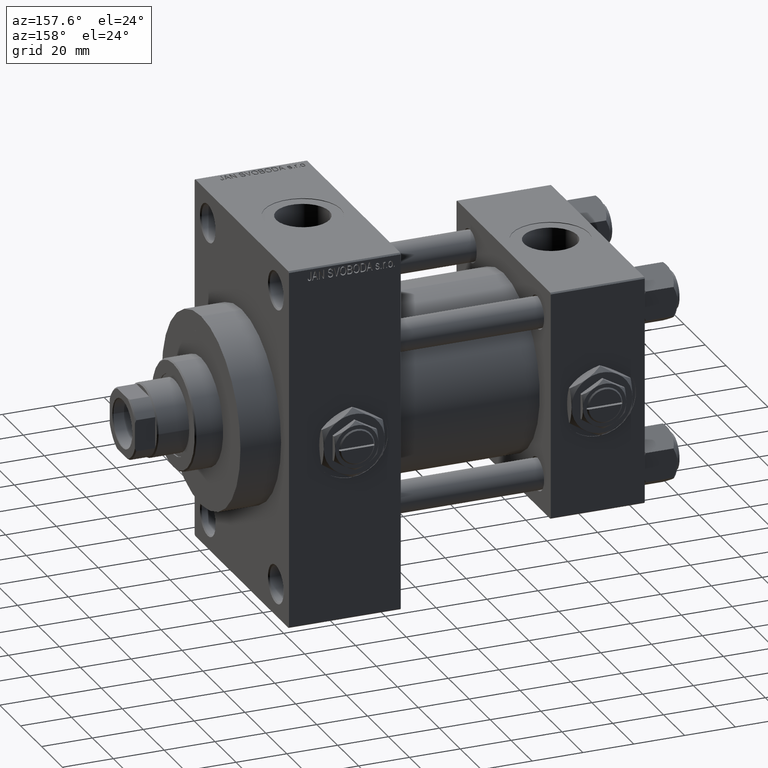
[diagram: clean part render]
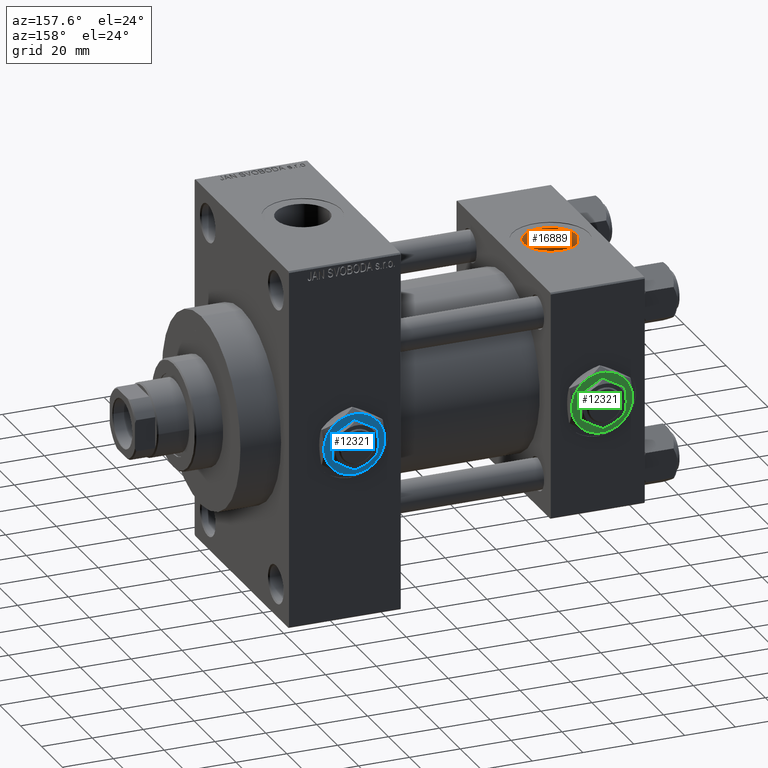
[diagram: same view with three faces highlighted in distinct colors, each labeled with its STEP entity id]
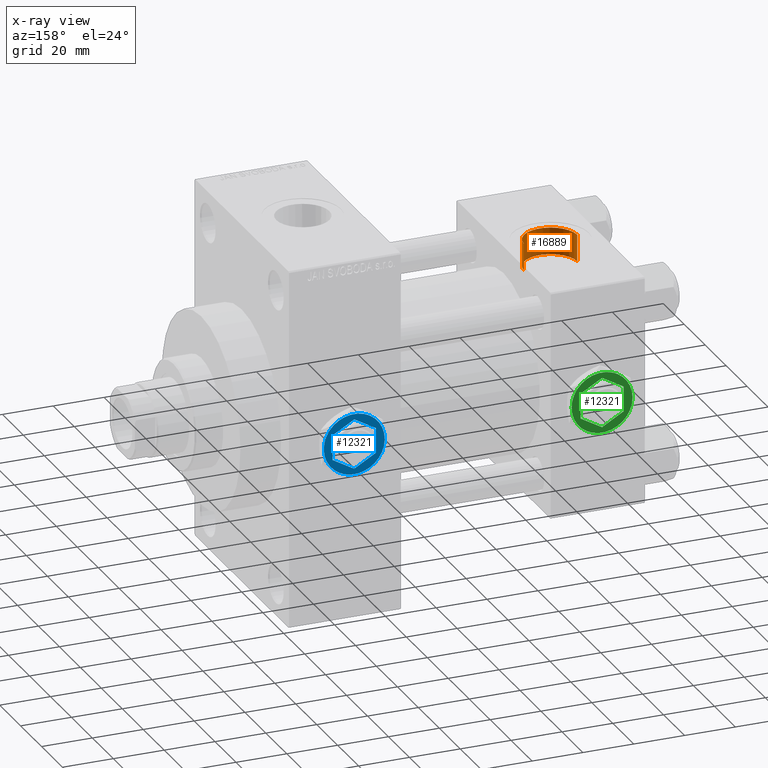
[diagram: x-ray of the same camera — body ghosted, the three highlighted faces saturated]
A machine part, auxiliary view with three faces highlighted in distinct colors.
The next image is the same camera in x-ray (body ghosted, the three faces saturated) — at least one of them is partly hidden behind the body in this view.
Their STEP definitions:

[orange] entity #16889 — the highlighted cylindrical surface (edge-blend (fillet) strip) has radius 10.48 mm, axis along (0, 0, 1).
#481 = CIRCLE ( 'NONE', #10861, 10.48000000000000043 ) ;
#955 = DIRECTION ( 'NONE',  ( -0.000000000000000000, -0.000000000000000000, 1.000000000000000000 ) ) ;
#1522 = ORIENTED_EDGE ( 'NONE', *, *, #32919, .F. ) ;
#2858 = FACE_OUTER_BOUND ( 'NONE', #15274, .T. ) ;
#2983 = VECTOR ( 'NONE', #955, 1000.000000000000000 ) ;
#3120 = CARTESIAN_POINT ( 'NONE',  ( 28.98000000000000043, -1.214306433183764966E-14, 44.79999999999999716 ) ) ;
#4842 = AXIS2_PLACEMENT_3D ( 'NONE', #41219, #37487, #29279 ) ;
#5605 = CARTESIAN_POINT ( 'NONE',  ( 28.98000000000000043, -1.214306433183764966E-14, 34.19999999999999574 ) ) ;
#6541 = EDGE_CURVE ( 'NONE', #43421, #48768, #12192, .T. ) ;
#7626 = CIRCLE ( 'NONE', #41858, 10.48000000000000043 ) ;
#10413 = CARTESIAN_POINT ( 'NONE',  ( 28.98000000000000043, -1.214306433183764966E-14, 34.19999999999999574 ) ) ;
#10861 = AXIS2_PLACEMENT_3D ( 'NONE', #18215, #29662, #33888 ) ;
#12192 = LINE ( 'NONE', #12677, #2983 ) ;
#12677 = CARTESIAN_POINT ( 'NONE',  ( 8.019999999999999574, -1.085963448633122417E-14, 34.19999999999999574 ) ) ;
#13493 = VERTEX_POINT ( 'NONE', #3120 ) ;
#14247 = ORIENTED_EDGE ( 'NONE', *, *, #6541, .T. ) ;
#15274 = EDGE_LOOP ( 'NONE', ( #1522, #14247, #46918, #22699 ) ) ;
#16754 = VERTEX_POINT ( 'NONE', #5605 ) ;
#16889 = ADVANCED_FACE ( 'NONE', ( #2858 ), #18803, .F. ) ;
#18215 = CARTESIAN_POINT ( 'NONE',  ( 18.50000000000000000, -1.214306433183764966E-14, 34.19999999999999574 ) ) ;
#18803 = CYLINDRICAL_SURFACE ( 'NONE', #4842, 10.48000000000000043 ) ;
#19512 = CARTESIAN_POINT ( 'NONE',  ( 8.019999999999999574, -1.085963448633122417E-14, 44.79999999999999716 ) ) ;
#21381 = LINE ( 'NONE', #10413, #36901 ) ;
#22186 = DIRECTION ( 'NONE',  ( 0.000000000000000000, 0.000000000000000000, 1.000000000000000000 ) ) ;
#22699 = ORIENTED_EDGE ( 'NONE', *, *, #23581, .F. ) ;
#23581 = EDGE_CURVE ( 'NONE', #16754, #13493, #21381, .T. ) ;
#29279 = DIRECTION ( 'NONE',  ( 1.000000000000000000, 0.000000000000000000, 0.000000000000000000 ) ) ;
#29662 = DIRECTION ( 'NONE',  ( 0.000000000000000000, 0.000000000000000000, 1.000000000000000000 ) ) ;
#29898 = DIRECTION ( 'NONE',  ( 1.000000000000000000, 0.000000000000000000, 0.000000000000000000 ) ) ;
#32919 = EDGE_CURVE ( 'NONE', #43421, #16754, #481, .T. ) ;
#32973 = EDGE_CURVE ( 'NONE', #48768, #13493, #7626, .T. ) ;
#33648 = CARTESIAN_POINT ( 'NONE',  ( 18.50000000000000000, -1.214306433183764966E-14, 44.79999999999999716 ) ) ;
#33888 = DIRECTION ( 'NONE',  ( 1.000000000000000000, 0.000000000000000000, 0.000000000000000000 ) ) ;
#36831 = DIRECTION ( 'NONE',  ( -0.000000000000000000, -0.000000000000000000, 1.000000000000000000 ) ) ;
#36901 = VECTOR ( 'NONE', #36831, 1000.000000000000000 ) ;
#37487 = DIRECTION ( 'NONE',  ( -0.000000000000000000, -0.000000000000000000, 1.000000000000000000 ) ) ;
#41219 = CARTESIAN_POINT ( 'NONE',  ( 18.50000000000000000, -1.214306433183764966E-14, 34.19999999999999574 ) ) ;
#41858 = AXIS2_PLACEMENT_3D ( 'NONE', #33648, #22186, #29898 ) ;
#43421 = VERTEX_POINT ( 'NONE', #49321 ) ;
#46918 = ORIENTED_EDGE ( 'NONE', *, *, #32973, .T. ) ;
#48768 = VERTEX_POINT ( 'NONE', #19512 ) ;
#49321 = CARTESIAN_POINT ( 'NONE',  ( 8.019999999999999574, -1.085963448633122417E-14, 34.19999999999999574 ) ) ;

[blue] entity #12321 — the highlighted planar face has unit normal (0, 1, 0).
#317 = EDGE_LOOP ( 'NONE', ( #14874, #34592, #8415, #23164, #14118, #11494 ) ) ;
#529 = CARTESIAN_POINT ( 'NONE',  ( -2.644623992720612091E-15, -9.814954576223637872, 4.299999999999999822 ) ) ;
#978 = VERTEX_POINT ( 'NONE', #7684 ) ;
#1473 = CIRCLE ( 'NONE', #3046, 12.00000000000000178 ) ;
#1917 = DIRECTION ( 'NONE',  ( 0.8660254037844385966, -0.5000000000000001110, 0.000000000000000000 ) ) ;
#2486 = EDGE_CURVE ( 'NONE', #28816, #33326, #33030, .T. ) ;
#2887 = EDGE_CURVE ( 'NONE', #39921, #14470, #12417, .T. ) ;
#3046 = AXIS2_PLACEMENT_3D ( 'NONE', #27507, #19042, #46681 ) ;
#3265 = DIRECTION ( 'NONE',  ( 1.000000000000000000, 0.000000000000000000, 0.000000000000000000 ) ) ;
#3629 = ORIENTED_EDGE ( 'NONE', *, *, #27479, .F. ) ;
#3778 = DIRECTION ( 'NONE',  ( 1.000000000000000000, 0.000000000000000000, 0.000000000000000000 ) ) ;
#4265 = CIRCLE ( 'NONE', #34512, 12.00000000000000178 ) ;
#4474 = AXIS2_PLACEMENT_3D ( 'NONE', #42151, #15747, #3778 ) ;
#5660 = LINE ( 'NONE', #5907, #39582 ) ;
#5778 = EDGE_LOOP ( 'NONE', ( #19386, #40849, #3629, #31885, #23179, #39626 ) ) ;
#5907 = CARTESIAN_POINT ( 'NONE',  ( 8.499999999999996447, 4.907477288111821601, 4.299999999999999822 ) ) ;
#6178 = CARTESIAN_POINT ( 'NONE',  ( 0.000000000000000000, 0.000000000000000000, 4.299999999999999822 ) ) ;
#6644 = CARTESIAN_POINT ( 'NONE',  ( -8.500000000000000000, 4.907477288111818048, 4.299999999999999822 ) ) ;
#6661 = VECTOR ( 'NONE', #43554, 1000.000000000000114 ) ;
#7249 = DIRECTION ( 'NONE',  ( 0.000000000000000000, 0.000000000000000000, 1.000000000000000000 ) ) ;
#7684 = CARTESIAN_POINT ( 'NONE',  ( 8.499999999999996447, 4.907477288111821601, 4.299999999999999822 ) ) ;
#7865 = DIRECTION ( 'NONE',  ( 0.000000000000000000, 0.000000000000000000, 1.000000000000000000 ) ) ;
#8415 = ORIENTED_EDGE ( 'NONE', *, *, #2887, .T. ) ;
#8718 = VERTEX_POINT ( 'NONE', #16931 ) ;
#9403 = LINE ( 'NONE', #32580, #42067 ) ;
#9661 = CARTESIAN_POINT ( 'NONE',  ( -2.644623992720612091E-15, -9.814954576223637872, 4.299999999999999822 ) ) ;
#9927 = CARTESIAN_POINT ( 'NONE',  ( -8.500000000000000000, -4.907477288111819824, 4.299999999999999822 ) ) ;
#10945 = EDGE_CURVE ( 'NONE', #8718, #25957, #34206, .T. ) ;
#11494 = ORIENTED_EDGE ( 'NONE', *, *, #31245, .T. ) ;
#12321 = ADVANCED_FACE ( 'NONE', ( #25628, #33339 ), #28862, .T. ) ;
#12417 = CIRCLE ( 'NONE', #4474, 12.00000000000000178 ) ;
#12684 = CARTESIAN_POINT ( 'NONE',  ( 11.99999999999999645, 3.004629197474318063E-15, 4.299999999999999822 ) ) ;
#12732 = AXIS2_PLACEMENT_3D ( 'NONE', #33683, #7249, #3265 ) ;
#12975 = VERTEX_POINT ( 'NONE', #33708 ) ;
#13086 = VERTEX_POINT ( 'NONE', #529 ) ;
#13228 = VECTOR ( 'NONE', #26053, 1000.000000000000000 ) ;
#14118 = ORIENTED_EDGE ( 'NONE', *, *, #23519, .T. ) ;
#14470 = VERTEX_POINT ( 'NONE', #36368 ) ;
#14821 = CARTESIAN_POINT ( 'NONE',  ( 8.500000000000000000, -4.907477288111819824, 4.299999999999999822 ) ) ;
#14874 = ORIENTED_EDGE ( 'NONE', *, *, #10945, .T. ) ;
#15481 = VERTEX_POINT ( 'NONE', #38333 ) ;
#15747 = DIRECTION ( 'NONE',  ( 0.000000000000000000, 0.000000000000000000, 1.000000000000000000 ) ) ;
#16931 = CARTESIAN_POINT ( 'NONE',  ( 5.999999999999998224, -10.39230484541326760, 4.299999999999999822 ) ) ;
#16986 = CIRCLE ( 'NONE', #46426, 12.00000000000000178 ) ;
#19042 = DIRECTION ( 'NONE',  ( 0.000000000000000000, 0.000000000000000000, 1.000000000000000000 ) ) ;
#19386 = ORIENTED_EDGE ( 'NONE', *, *, #45218, .F. ) ;
#19967 = VECTOR ( 'NONE', #22486, 1000.000000000000227 ) ;
#20888 = CARTESIAN_POINT ( 'NONE',  ( 0.000000000000000000, 0.000000000000000000, 4.299999999999999822 ) ) ;
#21139 = DIRECTION ( 'NONE',  ( 0.000000000000000000, 0.000000000000000000, 1.000000000000000000 ) ) ;
#22189 = AXIS2_PLACEMENT_3D ( 'NONE', #6178, #21139, #25131 ) ;
#22297 = DIRECTION ( 'NONE',  ( 1.000000000000000000, 0.000000000000000000, 0.000000000000000000 ) ) ;
#22486 = DIRECTION ( 'NONE',  ( -0.8660254037844385966, -0.5000000000000000000, 0.000000000000000000 ) ) ;
#22953 = EDGE_CURVE ( 'NONE', #14470, #44574, #16986, .T. ) ;
#23076 = DIRECTION ( 'NONE',  ( 1.000000000000000000, 0.000000000000000000, 0.000000000000000000 ) ) ;
#23164 = ORIENTED_EDGE ( 'NONE', *, *, #22953, .T. ) ;
#23179 = ORIENTED_EDGE ( 'NONE', *, *, #37866, .F. ) ;
#23461 = EDGE_CURVE ( 'NONE', #13086, #24112, #47792, .T. ) ;
#23519 = EDGE_CURVE ( 'NONE', #44574, #15481, #4265, .T. ) ;
#24112 = VERTEX_POINT ( 'NONE', #14821 ) ;
#25131 = DIRECTION ( 'NONE',  ( 1.000000000000000000, 0.000000000000000000, -0.000000000000000000 ) ) ;
#25628 = FACE_OUTER_BOUND ( 'NONE', #317, .T. ) ;
#25957 = VERTEX_POINT ( 'NONE', #12684 ) ;
#26053 = DIRECTION ( 'NONE',  ( 0.000000000000000000, -1.000000000000000000, 0.000000000000000000 ) ) ;
#26478 = LINE ( 'NONE', #37437, #19967 ) ;
#26655 = VECTOR ( 'NONE', #39658, 1000.000000000000000 ) ;
#26771 = CARTESIAN_POINT ( 'NONE',  ( 0.000000000000000000, 0.000000000000000000, 4.299999999999999822 ) ) ;
#27479 = EDGE_CURVE ( 'NONE', #24112, #978, #36174, .T. ) ;
#27507 = CARTESIAN_POINT ( 'NONE',  ( 0.000000000000000000, 0.000000000000000000, 4.299999999999999822 ) ) ;
#28816 = VERTEX_POINT ( 'NONE', #6644 ) ;
#28862 = PLANE ( 'NONE',  #22189 ) ;
#29450 = CARTESIAN_POINT ( 'NONE',  ( 6.000000000000000888, 10.39230484541326582, 4.299999999999999822 ) ) ;
#29876 = CIRCLE ( 'NONE', #43393, 12.00000000000000178 ) ;
#31245 = EDGE_CURVE ( 'NONE', #15481, #8718, #29876, .T. ) ;
#31885 = ORIENTED_EDGE ( 'NONE', *, *, #23461, .F. ) ;
#32090 = DIRECTION ( 'NONE',  ( -0.8660254037844387076, 0.4999999999999998890, 0.000000000000000000 ) ) ;
#32580 = CARTESIAN_POINT ( 'NONE',  ( -8.500000000000000000, -4.907477288111819824, 4.299999999999999822 ) ) ;
#33030 = LINE ( 'NONE', #41476, #13228 ) ;
#33326 = VERTEX_POINT ( 'NONE', #9927 ) ;
#33339 = FACE_BOUND ( 'NONE', #5778, .T. ) ;
#33683 = CARTESIAN_POINT ( 'NONE',  ( 0.000000000000000000, 0.000000000000000000, 4.299999999999999822 ) ) ;
#33708 = CARTESIAN_POINT ( 'NONE',  ( 0.000000000000000000, 9.814954576223637872, 4.299999999999999822 ) ) ;
#34206 = CIRCLE ( 'NONE', #12732, 12.00000000000000178 ) ;
#34512 = AXIS2_PLACEMENT_3D ( 'NONE', #20888, #46811, #40067 ) ;
#34592 = ORIENTED_EDGE ( 'NONE', *, *, #38262, .T. ) ;
#36174 = LINE ( 'NONE', #43400, #26655 ) ;
#36368 = CARTESIAN_POINT ( 'NONE',  ( -6.000000000000001776, 10.39230484541326405, 4.299999999999999822 ) ) ;
#36917 = EDGE_CURVE ( 'NONE', #978, #12975, #5660, .T. ) ;
#37437 = CARTESIAN_POINT ( 'NONE',  ( 0.000000000000000000, 9.814954576223637872, 4.299999999999999822 ) ) ;
#37866 = EDGE_CURVE ( 'NONE', #33326, #13086, #9403, .T. ) ;
#38262 = EDGE_CURVE ( 'NONE', #25957, #39921, #1473, .T. ) ;
#38333 = CARTESIAN_POINT ( 'NONE',  ( -6.000000000000000000, -10.39230484541326582, 4.299999999999999822 ) ) ;
#39582 = VECTOR ( 'NONE', #32090, 1000.000000000000114 ) ;
#39626 = ORIENTED_EDGE ( 'NONE', *, *, #2486, .F. ) ;
#39658 = DIRECTION ( 'NONE',  ( -3.534857879381550604E-16, 1.000000000000000000, 0.000000000000000000 ) ) ;
#39921 = VERTEX_POINT ( 'NONE', #29450 ) ;
#40067 = DIRECTION ( 'NONE',  ( 1.000000000000000000, 0.000000000000000000, 0.000000000000000000 ) ) ;
#40849 = ORIENTED_EDGE ( 'NONE', *, *, #36917, .F. ) ;
#41476 = CARTESIAN_POINT ( 'NONE',  ( -8.500000000000000000, 4.907477288111818048, 4.299999999999999822 ) ) ;
#42011 = CARTESIAN_POINT ( 'NONE',  ( 0.000000000000000000, 0.000000000000000000, 4.299999999999999822 ) ) ;
#42067 = VECTOR ( 'NONE', #1917, 1000.000000000000114 ) ;
#42151 = CARTESIAN_POINT ( 'NONE',  ( 0.000000000000000000, 0.000000000000000000, 4.299999999999999822 ) ) ;
#43024 = CARTESIAN_POINT ( 'NONE',  ( -12.00000000000000178, 0.000000000000000000, 4.299999999999999822 ) ) ;
#43393 = AXIS2_PLACEMENT_3D ( 'NONE', #26771, #44961, #22297 ) ;
#43400 = CARTESIAN_POINT ( 'NONE',  ( 8.500000000000000000, -4.907477288111819824, 4.299999999999999822 ) ) ;
#43554 = DIRECTION ( 'NONE',  ( 0.8660254037844388186, 0.4999999999999997224, 0.000000000000000000 ) ) ;
#44574 = VERTEX_POINT ( 'NONE', #43024 ) ;
#44961 = DIRECTION ( 'NONE',  ( 0.000000000000000000, 0.000000000000000000, 1.000000000000000000 ) ) ;
#45218 = EDGE_CURVE ( 'NONE', #12975, #28816, #26478, .T. ) ;
#46426 = AXIS2_PLACEMENT_3D ( 'NONE', #42011, #7865, #23076 ) ;
#46681 = DIRECTION ( 'NONE',  ( 1.000000000000000000, 0.000000000000000000, 0.000000000000000000 ) ) ;
#46811 = DIRECTION ( 'NONE',  ( 0.000000000000000000, 0.000000000000000000, 1.000000000000000000 ) ) ;
#47792 = LINE ( 'NONE', #9661, #6661 ) ;

[green] entity #12321 — the highlighted planar face has unit normal (0, 1, 0).
#317 = EDGE_LOOP ( 'NONE', ( #14874, #34592, #8415, #23164, #14118, #11494 ) ) ;
#529 = CARTESIAN_POINT ( 'NONE',  ( -2.644623992720612091E-15, -9.814954576223637872, 4.299999999999999822 ) ) ;
#978 = VERTEX_POINT ( 'NONE', #7684 ) ;
#1473 = CIRCLE ( 'NONE', #3046, 12.00000000000000178 ) ;
#1917 = DIRECTION ( 'NONE',  ( 0.8660254037844385966, -0.5000000000000001110, 0.000000000000000000 ) ) ;
#2486 = EDGE_CURVE ( 'NONE', #28816, #33326, #33030, .T. ) ;
#2887 = EDGE_CURVE ( 'NONE', #39921, #14470, #12417, .T. ) ;
#3046 = AXIS2_PLACEMENT_3D ( 'NONE', #27507, #19042, #46681 ) ;
#3265 = DIRECTION ( 'NONE',  ( 1.000000000000000000, 0.000000000000000000, 0.000000000000000000 ) ) ;
#3629 = ORIENTED_EDGE ( 'NONE', *, *, #27479, .F. ) ;
#3778 = DIRECTION ( 'NONE',  ( 1.000000000000000000, 0.000000000000000000, 0.000000000000000000 ) ) ;
#4265 = CIRCLE ( 'NONE', #34512, 12.00000000000000178 ) ;
#4474 = AXIS2_PLACEMENT_3D ( 'NONE', #42151, #15747, #3778 ) ;
#5660 = LINE ( 'NONE', #5907, #39582 ) ;
#5778 = EDGE_LOOP ( 'NONE', ( #19386, #40849, #3629, #31885, #23179, #39626 ) ) ;
#5907 = CARTESIAN_POINT ( 'NONE',  ( 8.499999999999996447, 4.907477288111821601, 4.299999999999999822 ) ) ;
#6178 = CARTESIAN_POINT ( 'NONE',  ( 0.000000000000000000, 0.000000000000000000, 4.299999999999999822 ) ) ;
#6644 = CARTESIAN_POINT ( 'NONE',  ( -8.500000000000000000, 4.907477288111818048, 4.299999999999999822 ) ) ;
#6661 = VECTOR ( 'NONE', #43554, 1000.000000000000114 ) ;
#7249 = DIRECTION ( 'NONE',  ( 0.000000000000000000, 0.000000000000000000, 1.000000000000000000 ) ) ;
#7684 = CARTESIAN_POINT ( 'NONE',  ( 8.499999999999996447, 4.907477288111821601, 4.299999999999999822 ) ) ;
#7865 = DIRECTION ( 'NONE',  ( 0.000000000000000000, 0.000000000000000000, 1.000000000000000000 ) ) ;
#8415 = ORIENTED_EDGE ( 'NONE', *, *, #2887, .T. ) ;
#8718 = VERTEX_POINT ( 'NONE', #16931 ) ;
#9403 = LINE ( 'NONE', #32580, #42067 ) ;
#9661 = CARTESIAN_POINT ( 'NONE',  ( -2.644623992720612091E-15, -9.814954576223637872, 4.299999999999999822 ) ) ;
#9927 = CARTESIAN_POINT ( 'NONE',  ( -8.500000000000000000, -4.907477288111819824, 4.299999999999999822 ) ) ;
#10945 = EDGE_CURVE ( 'NONE', #8718, #25957, #34206, .T. ) ;
#11494 = ORIENTED_EDGE ( 'NONE', *, *, #31245, .T. ) ;
#12321 = ADVANCED_FACE ( 'NONE', ( #25628, #33339 ), #28862, .T. ) ;
#12417 = CIRCLE ( 'NONE', #4474, 12.00000000000000178 ) ;
#12684 = CARTESIAN_POINT ( 'NONE',  ( 11.99999999999999645, 3.004629197474318063E-15, 4.299999999999999822 ) ) ;
#12732 = AXIS2_PLACEMENT_3D ( 'NONE', #33683, #7249, #3265 ) ;
#12975 = VERTEX_POINT ( 'NONE', #33708 ) ;
#13086 = VERTEX_POINT ( 'NONE', #529 ) ;
#13228 = VECTOR ( 'NONE', #26053, 1000.000000000000000 ) ;
#14118 = ORIENTED_EDGE ( 'NONE', *, *, #23519, .T. ) ;
#14470 = VERTEX_POINT ( 'NONE', #36368 ) ;
#14821 = CARTESIAN_POINT ( 'NONE',  ( 8.500000000000000000, -4.907477288111819824, 4.299999999999999822 ) ) ;
#14874 = ORIENTED_EDGE ( 'NONE', *, *, #10945, .T. ) ;
#15481 = VERTEX_POINT ( 'NONE', #38333 ) ;
#15747 = DIRECTION ( 'NONE',  ( 0.000000000000000000, 0.000000000000000000, 1.000000000000000000 ) ) ;
#16931 = CARTESIAN_POINT ( 'NONE',  ( 5.999999999999998224, -10.39230484541326760, 4.299999999999999822 ) ) ;
#16986 = CIRCLE ( 'NONE', #46426, 12.00000000000000178 ) ;
#19042 = DIRECTION ( 'NONE',  ( 0.000000000000000000, 0.000000000000000000, 1.000000000000000000 ) ) ;
#19386 = ORIENTED_EDGE ( 'NONE', *, *, #45218, .F. ) ;
#19967 = VECTOR ( 'NONE', #22486, 1000.000000000000227 ) ;
#20888 = CARTESIAN_POINT ( 'NONE',  ( 0.000000000000000000, 0.000000000000000000, 4.299999999999999822 ) ) ;
#21139 = DIRECTION ( 'NONE',  ( 0.000000000000000000, 0.000000000000000000, 1.000000000000000000 ) ) ;
#22189 = AXIS2_PLACEMENT_3D ( 'NONE', #6178, #21139, #25131 ) ;
#22297 = DIRECTION ( 'NONE',  ( 1.000000000000000000, 0.000000000000000000, 0.000000000000000000 ) ) ;
#22486 = DIRECTION ( 'NONE',  ( -0.8660254037844385966, -0.5000000000000000000, 0.000000000000000000 ) ) ;
#22953 = EDGE_CURVE ( 'NONE', #14470, #44574, #16986, .T. ) ;
#23076 = DIRECTION ( 'NONE',  ( 1.000000000000000000, 0.000000000000000000, 0.000000000000000000 ) ) ;
#23164 = ORIENTED_EDGE ( 'NONE', *, *, #22953, .T. ) ;
#23179 = ORIENTED_EDGE ( 'NONE', *, *, #37866, .F. ) ;
#23461 = EDGE_CURVE ( 'NONE', #13086, #24112, #47792, .T. ) ;
#23519 = EDGE_CURVE ( 'NONE', #44574, #15481, #4265, .T. ) ;
#24112 = VERTEX_POINT ( 'NONE', #14821 ) ;
#25131 = DIRECTION ( 'NONE',  ( 1.000000000000000000, 0.000000000000000000, -0.000000000000000000 ) ) ;
#25628 = FACE_OUTER_BOUND ( 'NONE', #317, .T. ) ;
#25957 = VERTEX_POINT ( 'NONE', #12684 ) ;
#26053 = DIRECTION ( 'NONE',  ( 0.000000000000000000, -1.000000000000000000, 0.000000000000000000 ) ) ;
#26478 = LINE ( 'NONE', #37437, #19967 ) ;
#26655 = VECTOR ( 'NONE', #39658, 1000.000000000000000 ) ;
#26771 = CARTESIAN_POINT ( 'NONE',  ( 0.000000000000000000, 0.000000000000000000, 4.299999999999999822 ) ) ;
#27479 = EDGE_CURVE ( 'NONE', #24112, #978, #36174, .T. ) ;
#27507 = CARTESIAN_POINT ( 'NONE',  ( 0.000000000000000000, 0.000000000000000000, 4.299999999999999822 ) ) ;
#28816 = VERTEX_POINT ( 'NONE', #6644 ) ;
#28862 = PLANE ( 'NONE',  #22189 ) ;
#29450 = CARTESIAN_POINT ( 'NONE',  ( 6.000000000000000888, 10.39230484541326582, 4.299999999999999822 ) ) ;
#29876 = CIRCLE ( 'NONE', #43393, 12.00000000000000178 ) ;
#31245 = EDGE_CURVE ( 'NONE', #15481, #8718, #29876, .T. ) ;
#31885 = ORIENTED_EDGE ( 'NONE', *, *, #23461, .F. ) ;
#32090 = DIRECTION ( 'NONE',  ( -0.8660254037844387076, 0.4999999999999998890, 0.000000000000000000 ) ) ;
#32580 = CARTESIAN_POINT ( 'NONE',  ( -8.500000000000000000, -4.907477288111819824, 4.299999999999999822 ) ) ;
#33030 = LINE ( 'NONE', #41476, #13228 ) ;
#33326 = VERTEX_POINT ( 'NONE', #9927 ) ;
#33339 = FACE_BOUND ( 'NONE', #5778, .T. ) ;
#33683 = CARTESIAN_POINT ( 'NONE',  ( 0.000000000000000000, 0.000000000000000000, 4.299999999999999822 ) ) ;
#33708 = CARTESIAN_POINT ( 'NONE',  ( 0.000000000000000000, 9.814954576223637872, 4.299999999999999822 ) ) ;
#34206 = CIRCLE ( 'NONE', #12732, 12.00000000000000178 ) ;
#34512 = AXIS2_PLACEMENT_3D ( 'NONE', #20888, #46811, #40067 ) ;
#34592 = ORIENTED_EDGE ( 'NONE', *, *, #38262, .T. ) ;
#36174 = LINE ( 'NONE', #43400, #26655 ) ;
#36368 = CARTESIAN_POINT ( 'NONE',  ( -6.000000000000001776, 10.39230484541326405, 4.299999999999999822 ) ) ;
#36917 = EDGE_CURVE ( 'NONE', #978, #12975, #5660, .T. ) ;
#37437 = CARTESIAN_POINT ( 'NONE',  ( 0.000000000000000000, 9.814954576223637872, 4.299999999999999822 ) ) ;
#37866 = EDGE_CURVE ( 'NONE', #33326, #13086, #9403, .T. ) ;
#38262 = EDGE_CURVE ( 'NONE', #25957, #39921, #1473, .T. ) ;
#38333 = CARTESIAN_POINT ( 'NONE',  ( -6.000000000000000000, -10.39230484541326582, 4.299999999999999822 ) ) ;
#39582 = VECTOR ( 'NONE', #32090, 1000.000000000000114 ) ;
#39626 = ORIENTED_EDGE ( 'NONE', *, *, #2486, .F. ) ;
#39658 = DIRECTION ( 'NONE',  ( -3.534857879381550604E-16, 1.000000000000000000, 0.000000000000000000 ) ) ;
#39921 = VERTEX_POINT ( 'NONE', #29450 ) ;
#40067 = DIRECTION ( 'NONE',  ( 1.000000000000000000, 0.000000000000000000, 0.000000000000000000 ) ) ;
#40849 = ORIENTED_EDGE ( 'NONE', *, *, #36917, .F. ) ;
#41476 = CARTESIAN_POINT ( 'NONE',  ( -8.500000000000000000, 4.907477288111818048, 4.299999999999999822 ) ) ;
#42011 = CARTESIAN_POINT ( 'NONE',  ( 0.000000000000000000, 0.000000000000000000, 4.299999999999999822 ) ) ;
#42067 = VECTOR ( 'NONE', #1917, 1000.000000000000114 ) ;
#42151 = CARTESIAN_POINT ( 'NONE',  ( 0.000000000000000000, 0.000000000000000000, 4.299999999999999822 ) ) ;
#43024 = CARTESIAN_POINT ( 'NONE',  ( -12.00000000000000178, 0.000000000000000000, 4.299999999999999822 ) ) ;
#43393 = AXIS2_PLACEMENT_3D ( 'NONE', #26771, #44961, #22297 ) ;
#43400 = CARTESIAN_POINT ( 'NONE',  ( 8.500000000000000000, -4.907477288111819824, 4.299999999999999822 ) ) ;
#43554 = DIRECTION ( 'NONE',  ( 0.8660254037844388186, 0.4999999999999997224, 0.000000000000000000 ) ) ;
#44574 = VERTEX_POINT ( 'NONE', #43024 ) ;
#44961 = DIRECTION ( 'NONE',  ( 0.000000000000000000, 0.000000000000000000, 1.000000000000000000 ) ) ;
#45218 = EDGE_CURVE ( 'NONE', #12975, #28816, #26478, .T. ) ;
#46426 = AXIS2_PLACEMENT_3D ( 'NONE', #42011, #7865, #23076 ) ;
#46681 = DIRECTION ( 'NONE',  ( 1.000000000000000000, 0.000000000000000000, 0.000000000000000000 ) ) ;
#46811 = DIRECTION ( 'NONE',  ( 0.000000000000000000, 0.000000000000000000, 1.000000000000000000 ) ) ;
#47792 = LINE ( 'NONE', #9661, #6661 ) ;